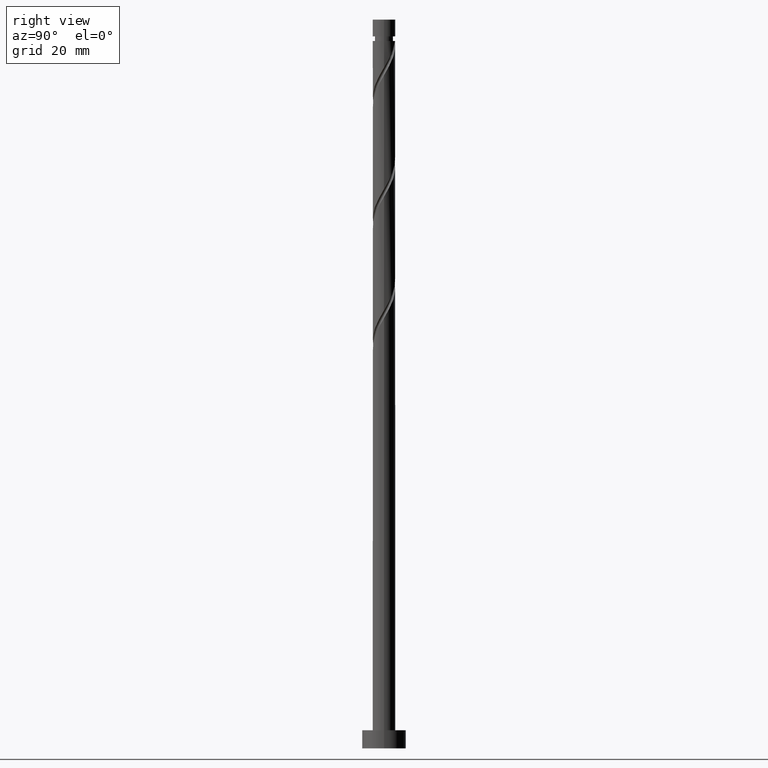
[diagram: clean part render]
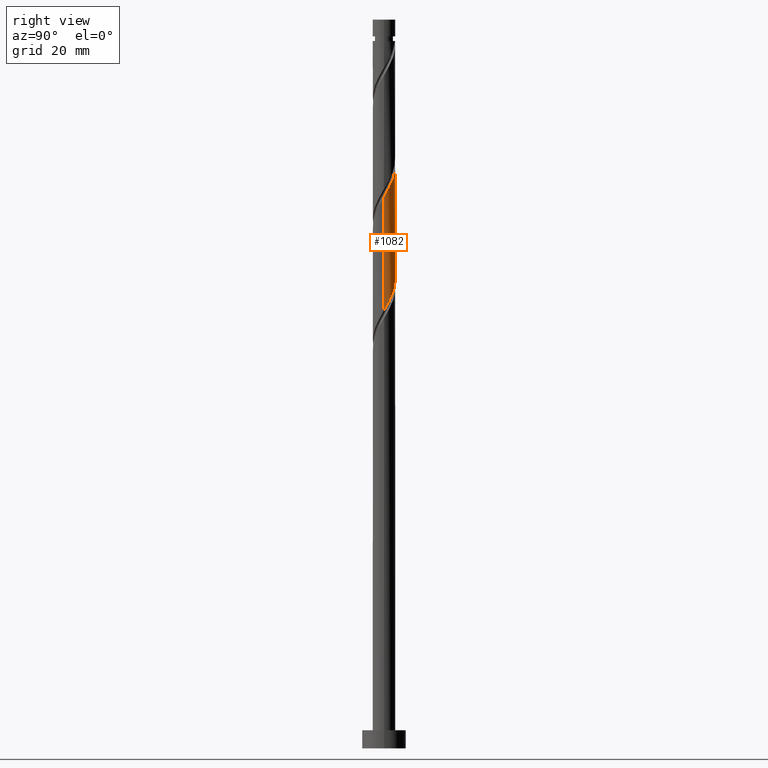
[diagram: same view with one face highlighted and labeled with its STEP entity id]
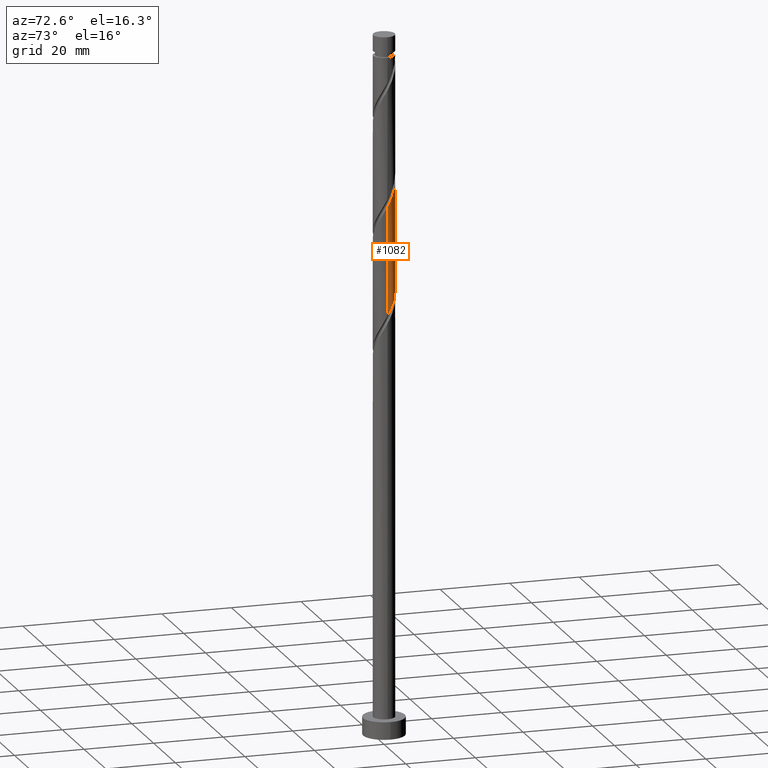
[diagram: same view with one face highlighted and labeled with its STEP entity id]
A machine part, right view. The second image highlights one B-rep face of the part: STEP entity #1082.
A second angle (auxiliary view) of the same face is appended — the face is thin or edge-on in the first view.
In plain terms, the highlighted cylindrical surface (edge-blend (fillet) strip) has radius 3.1 mm, axis along (-0, -0, -1).
Its self-contained STEP definition (entity closure, byte-faithful):
#7 =( BOUNDED_CURVE ( )  B_SPLINE_CURVE ( 2, ( #553, #1361, #1232, #1469, #265, #836, #1371, #563, #796, #660, #809, #1201, #718, #852, #1139, #573, #177, #1001, #1249, #169, #708, #872, #40, #1266, #845, #1257, #1658 ),
 .UNSPECIFIED., .F., .T. ) 
 B_SPLINE_CURVE_WITH_KNOTS ( ( 3, 2, 2, 2, 2, 2, 2, 2, 2, 2, 2, 2, 2, 3 ),
 ( 0.4295317669814461281, 0.4375000000000000000, 0.4479166666666666297, 0.4583333333333333703, 0.4687500000000000000, 0.4791666666666666297, 0.4895833333333333703, 0.5000000000000000000, 0.5104166666666667407, 0.5208333333333332593, 0.5312500000000000000, 0.5416666666666667407, 0.5520833333333332593, 0.5545317669814457950 ),
 .UNSPECIFIED. ) 
 CURVE ( )  GEOMETRIC_REPRESENTATION_ITEM ( )  RATIONAL_B_SPLINE_CURVE ( ( 0.9062941362546502733, 0.9031415850403541334, 0.9090909090909298218, 0.9013135103398480785, 0.9090909090909298218, 0.9013135103398480785, 0.9090909090909298218, 0.9013135103398480785, 0.9090909090909298218, 0.9013135103398480785, 0.9090909090909298218, 0.9013135103398480785, 0.9090909090909298218, 0.9013135103398480785, 0.9090909090909298218, 0.9013135103398480785, 0.9090909090909298218, 0.9013135103398480785, 0.9090909090909298218, 0.9013135103398480785, 0.9090909090909298218, 0.9013135103398480785, 0.9090909090909298218, 0.9013135103398480785, 0.9090909090909298218, 0.9072628343904238779, 0.9062941362546504953 ) ) 
 REPRESENTATION_ITEM ( '' )  );
#32 = EDGE_CURVE ( 'NONE', #752, #742, #1320, .T. ) ;
#40 = CARTESIAN_POINT ( 'NONE',  ( -2.939431282200180906, 0.9847556738719646097, 166.3611713923995126 ) ) ;
#63 = CARTESIAN_POINT ( 'NONE',  ( -2.956784599678835779, 1.016852498676613870, 135.1111713923995410 ) ) ;
#93 = EDGE_CURVE ( 'NONE', #1016, #589, #1189, .T. ) ;
#140 = CARTESIAN_POINT ( 'NONE',  ( 0.2169319233355964660, 3.119215400321164733, 128.1667269479551123 ) ) ;
#169 = CARTESIAN_POINT ( 'NONE',  ( -2.359012395595050826, 2.052224327502169654, 164.2778380590662266 ) ) ;
#177 = CARTESIAN_POINT ( 'NONE',  ( -1.382164377668821498, 2.774819207282409383, 162.1945047257328270 ) ) ;
#190 = CARTESIAN_POINT ( 'NONE',  ( 3.100000000000000089, 4.501089117529644308E-15, 120.2025158253874082 ) ) ;
#192 = CARTESIAN_POINT ( 'NONE',  ( -3.037999999999999812, 0.6168922110061053621, 135.8056158368439981 ) ) ;
#220 = CARTESIAN_POINT ( 'NONE',  ( 3.100000000000002309, 0.000000000000000000, 151.4087158483005169 ) ) ;
#235 = CARTESIAN_POINT ( 'NONE',  ( -1.371739143660136939, 2.809785738221574292, 130.9445047257328838 ) ) ;
#265 = CARTESIAN_POINT ( 'NONE',  ( 2.774819207282409383, 1.382164377668820165, 153.8611713923995410 ) ) ;
#331 =( BOUNDED_CURVE ( )  B_SPLINE_CURVE ( 2, ( #867, #1399, #192, #63, #1530, #336, #1404, #1275, #737, #235, #1027, #788, #1324, #140, #1222, #711, #875, #341, #1397, #1536, #734, #1515, #864, #1135, #880, #1661, #190 ),
 .UNSPECIFIED., .F., .T. ) 
 B_SPLINE_CURVE_WITH_KNOTS ( ( 3, 2, 2, 2, 2, 2, 2, 2, 2, 2, 2, 2, 2, 3 ),
 ( 0.6795317669814461281, 0.6875000000000000000, 0.6979166666666666297, 0.7083333333333333703, 0.7187500000000000000, 0.7291666666666666297, 0.7395833333333333703, 0.7500000000000000000, 0.7604166666666666297, 0.7708333333333333703, 0.7812500000000000000, 0.7916666666666666297, 0.8020833333333333703, 0.8045317669814461281 ),
 .UNSPECIFIED. ) 
 CURVE ( )  GEOMETRIC_REPRESENTATION_ITEM ( )  RATIONAL_B_SPLINE_CURVE ( ( 0.9062941362546449442, 0.9031415850403489154, 0.9090909090909243817, 0.9013135103398428605, 0.9090909090909243817, 0.9013135103398428605, 0.9090909090909243817, 0.9013135103398428605, 0.9090909090909243817, 0.9013135103398428605, 0.9090909090909243817, 0.9013135103398428605, 0.9090909090909243817, 0.9013135103398428605, 0.9090909090909243817, 0.9013135103398428605, 0.9090909090909243817, 0.9013135103398428605, 0.9090909090909243817, 0.9013135103398428605, 0.9090909090909243817, 0.9013135103398428605, 0.9090909090909243817, 0.9013135103398428605, 0.9090909090909243817, 0.9072628343904183268, 0.9062941362546449442 ) ) 
 REPRESENTATION_ITEM ( '' )  );
#336 = CARTESIAN_POINT ( 'NONE',  ( -2.592853814885977215, 1.747476256661027572, 133.7222825035106553 ) ) ;
#341 = CARTESIAN_POINT ( 'NONE',  ( 1.747476256661028682, 2.592853814885977215, 125.3889491701773125 ) ) ;
#514 = DIRECTION ( 'NONE',  ( -0.000000000000000000, -0.000000000000000000, -1.000000000000000000 ) ) ;
#520 = CARTESIAN_POINT ( 'NONE',  ( 0.000000000000000000, 0.000000000000000000, 200.0000000000000000 ) ) ;
#553 = CARTESIAN_POINT ( 'NONE',  ( 3.100000000000002309, 0.000000000000000000, 151.4087158483005453 ) ) ;
#556 = VECTOR ( 'NONE', #1171, 1000.000000000000000 ) ;
#563 = CARTESIAN_POINT ( 'NONE',  ( 2.052224327502171430, 2.359012395595048162, 155.9445047257328838 ) ) ;
#573 = CARTESIAN_POINT ( 'NONE',  ( -1.016852498676614758, 2.956784599678839776, 161.5000602812883699 ) ) ;
#589 = VERTEX_POINT ( 'NONE', #1570 ) ;
#601 = ORIENTED_EDGE ( 'NONE', *, *, #1721, .F. ) ;
#660 = CARTESIAN_POINT ( 'NONE',  ( 1.371739143660140714, 2.809785738221576512, 157.3333936146217980 ) ) ;
#674 = EDGE_CURVE ( 'NONE', #589, #742, #331, .T. ) ;
#708 = CARTESIAN_POINT ( 'NONE',  ( -2.584399066908313447, 1.711981735581154185, 164.9722825035106268 ) ) ;
#711 = CARTESIAN_POINT ( 'NONE',  ( 1.016852498676616534, 2.956784599678834002, 126.7778380590662550 ) ) ;
#718 = CARTESIAN_POINT ( 'NONE',  ( 0.1904201403740989340, 3.094146113249975460, 159.4167269479550839 ) ) ;
#734 = CARTESIAN_POINT ( 'NONE',  ( 2.584399066908310783, 1.711981735581151520, 123.3056158368439981 ) ) ;
#737 = CARTESIAN_POINT ( 'NONE',  ( -1.711981735581151964, 2.584399066908310783, 131.6389491701773125 ) ) ;
#742 = VERTEX_POINT ( 'NONE', #1172 ) ;
#752 = VERTEX_POINT ( 'NONE', #220 ) ;
#788 = CARTESIAN_POINT ( 'NONE',  ( -0.5977722040837880613, 3.069076826178780415, 129.5556158368439981 ) ) ;
#794 = ORIENTED_EDGE ( 'NONE', *, *, #93, .F. ) ;
#796 = CARTESIAN_POINT ( 'NONE',  ( 1.711981735581154407, 2.584399066908313003, 156.6389491701772840 ) ) ;
#807 = CARTESIAN_POINT ( 'NONE',  ( 3.100000000000000089, 3.796405077356794918E-16, 200.0000000000000000 ) ) ;
#809 = CARTESIAN_POINT ( 'NONE',  ( 0.9847556738719657199, 2.939431282200179574, 158.0278380590661982 ) ) ;
#836 = CARTESIAN_POINT ( 'NONE',  ( 2.592853814885982100, 1.747476256661027350, 154.5556158368439696 ) ) ;
#845 = CARTESIAN_POINT ( 'NONE',  ( -3.094146113249975460, 0.1904201403740971021, 167.7500602812884267 ) ) ;
#852 = CARTESIAN_POINT ( 'NONE',  ( -0.2169319233355931631, 3.119215400321167841, 160.1111713923995410 ) ) ;
#864 = CARTESIAN_POINT ( 'NONE',  ( 2.939431282200178686, 0.9847556738719602798, 121.9167269479551265 ) ) ;
#867 = CARTESIAN_POINT ( 'NONE',  ( -3.100000000000000977, -5.174009417492547968E-15, 136.8691824920540796 ) ) ;
#872 = CARTESIAN_POINT ( 'NONE',  ( -2.809785738221577400, 1.371739143660139382, 165.6667269479550555 ) ) ;
#875 = CARTESIAN_POINT ( 'NONE',  ( 1.382164377668822608, 2.774819207282405387, 126.0833936146217837 ) ) ;
#880 = CARTESIAN_POINT ( 'NONE',  ( 3.094146113249972796, 0.1904201403740943266, 120.5278380590662266 ) ) ;
#1001 = CARTESIAN_POINT ( 'NONE',  ( -1.747476256661028904, 2.592853814885981656, 162.8889491701773125 ) ) ;
#1016 = VERTEX_POINT ( 'NONE', #1310 ) ;
#1027 = CARTESIAN_POINT ( 'NONE',  ( -0.9847556738719625002, 2.939431282200177353, 130.2500602812884267 ) ) ;
#1031 = ORIENTED_EDGE ( 'NONE', *, *, #674, .F. ) ;
#1049 = DIRECTION ( 'NONE',  ( -0.000000000000000000, -0.000000000000000000, -1.000000000000000000 ) ) ;
#1069 = DIRECTION ( 'NONE',  ( -1.000000000000000000, 0.000000000000000000, 0.000000000000000000 ) ) ;
#1082 = ADVANCED_FACE ( 'NONE', ( #1316 ), #1733, .T. ) ;
#1134 = ORIENTED_EDGE ( 'NONE', *, *, #32, .T. ) ;
#1135 = CARTESIAN_POINT ( 'NONE',  ( 3.069076826178781303, 0.5977722040837861739, 121.2222825035106268 ) ) ;
#1139 = CARTESIAN_POINT ( 'NONE',  ( -0.6168922110061045849, 3.038000000000003364, 160.8056158368439981 ) ) ;
#1171 = DIRECTION ( 'NONE',  ( -0.000000000000000000, -0.000000000000000000, -1.000000000000000000 ) ) ;
#1172 = CARTESIAN_POINT ( 'NONE',  ( 3.100000000000000533, 4.501089117529644308E-15, 120.2025158253874082 ) ) ;
#1189 = LINE ( 'NONE', #1728, #1244 ) ;
#1201 = CARTESIAN_POINT ( 'NONE',  ( 0.5977722040837911699, 3.069076826178783524, 158.7222825035106268 ) ) ;
#1222 = CARTESIAN_POINT ( 'NONE',  ( 0.6168922110061058062, 3.037999999999999812, 127.4722825035106979 ) ) ;
#1232 = CARTESIAN_POINT ( 'NONE',  ( 3.038000000000003364, 0.6168922110061046959, 152.4722825035106553 ) ) ;
#1244 = VECTOR ( 'NONE', #514, 1000.000000000000000 ) ;
#1249 = CARTESIAN_POINT ( 'NONE',  ( -2.053244326128039088, 2.322539071194074545, 163.5833936146217980 ) ) ;
#1257 = CARTESIAN_POINT ( 'NONE',  ( -3.100000000000001865, 0.09530005013880528397, 167.9122188269390392 ) ) ;
#1266 = CARTESIAN_POINT ( 'NONE',  ( -3.069076826178783968, 0.5977722040837893935, 167.0556158368439696 ) ) ;
#1275 = CARTESIAN_POINT ( 'NONE',  ( -2.052224327502166545, 2.359012395595047717, 132.3333936146217980 ) ) ;
#1310 = CARTESIAN_POINT ( 'NONE',  ( -3.100000000000003197, 3.409462853145358298E-15, 168.0753825149672309 ) ) ;
#1316 = FACE_OUTER_BOUND ( 'NONE', #1660, .T. ) ;
#1320 = LINE ( 'NONE', #807, #556 ) ;
#1324 = CARTESIAN_POINT ( 'NONE',  ( -0.1904201403740956866, 3.094146113249972796, 128.8611713923995694 ) ) ;
#1361 = CARTESIAN_POINT ( 'NONE',  ( 3.100000000000005418, 0.3115617227303466574, 151.9421422174898169 ) ) ;
#1371 = CARTESIAN_POINT ( 'NONE',  ( 2.322539071194076765, 2.053244326128037311, 155.2500602812884267 ) ) ;
#1397 = CARTESIAN_POINT ( 'NONE',  ( 2.053244326128037756, 2.322539071194070548, 124.6945047257328696 ) ) ;
#1399 = CARTESIAN_POINT ( 'NONE',  ( -3.100000000000002309, 0.3115617227303496550, 136.3357561228647796 ) ) ;
#1404 = CARTESIAN_POINT ( 'NONE',  ( -2.322539071194071880, 2.053244326128036867, 133.0278380590661982 ) ) ;
#1469 = CARTESIAN_POINT ( 'NONE',  ( 2.956784599678840664, 1.016852498676613648, 153.1667269479551123 ) ) ;
#1515 = CARTESIAN_POINT ( 'NONE',  ( 2.809785738221575624, 1.371739143660134941, 122.6111713923995552 ) ) ;
#1530 = CARTESIAN_POINT ( 'NONE',  ( -2.774819207282405831, 1.382164377668820832, 134.4167269479550839 ) ) ;
#1536 = CARTESIAN_POINT ( 'NONE',  ( 2.359012395595048606, 2.052224327502166101, 124.0000602812884267 ) ) ;
#1570 = CARTESIAN_POINT ( 'NONE',  ( -3.100000000000000977, -5.174009417492547968E-15, 136.8691824920540796 ) ) ;
#1658 = CARTESIAN_POINT ( 'NONE',  ( -3.100000000000003642, 3.409462853145358298E-15, 168.0753825149672309 ) ) ;
#1660 = EDGE_LOOP ( 'NONE', ( #601, #1134, #1031, #794 ) ) ;
#1661 = CARTESIAN_POINT ( 'NONE',  ( 3.100000000000000089, 0.09530005013879316866, 120.3656795134155431 ) ) ;
#1702 = AXIS2_PLACEMENT_3D ( 'NONE', #520, #1049, #1069 ) ;
#1721 = EDGE_CURVE ( 'NONE', #752, #1016, #7, .T. ) ;
#1728 = CARTESIAN_POINT ( 'NONE',  ( -3.100000000000000089, 0.000000000000000000, 200.0000000000000000 ) ) ;
#1733 = CYLINDRICAL_SURFACE ( 'NONE', #1702, 3.100000000000000089 ) ;